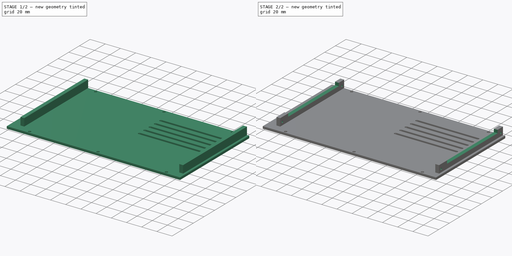
[diagram: build sequence overview — one tinted view per stage of 2, left to right]
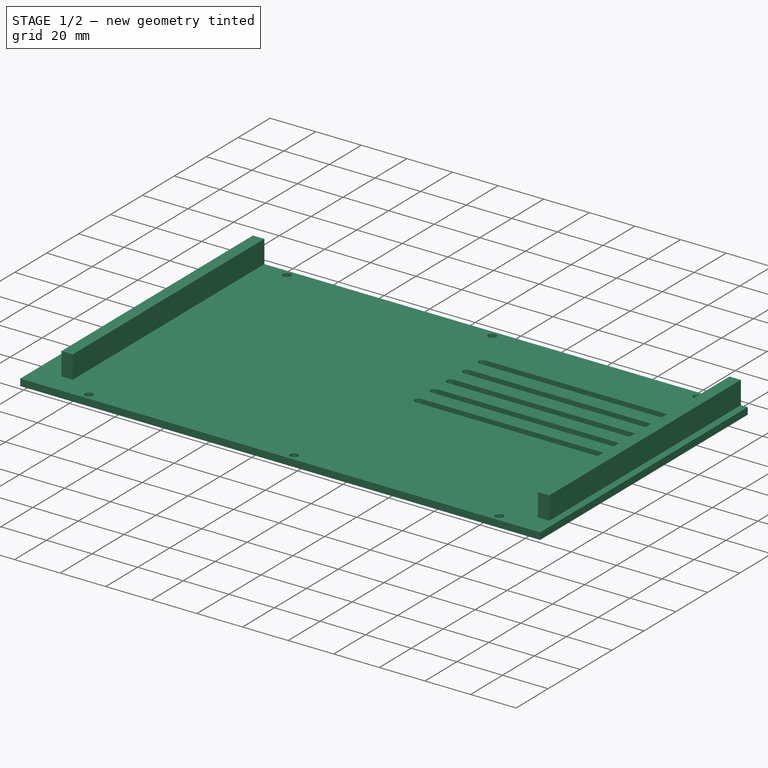
[diagram: stage 1 of 2 — iso view after this stage's code; geometry added in this stage tinted green]
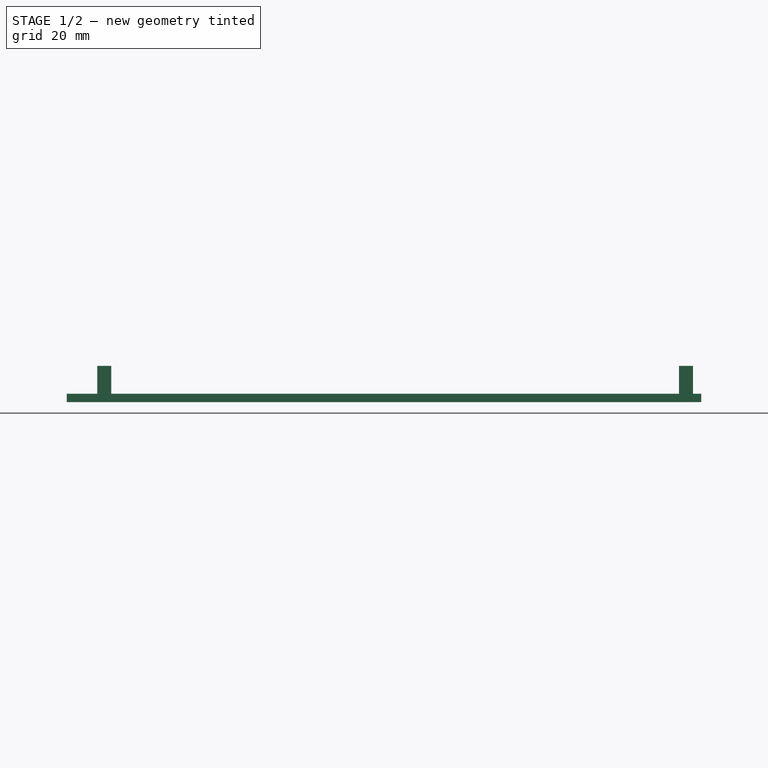
[diagram: stage 1 of 2 — front view after this stage's code; geometry added in this stage tinted green]
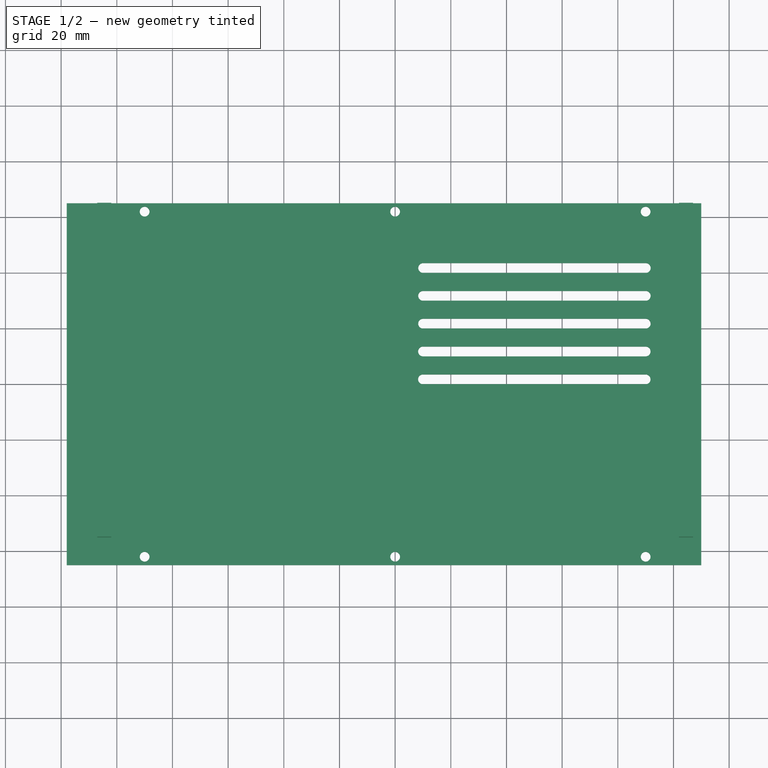
[diagram: stage 1 of 2 — top view after this stage's code; geometry added in this stage tinted green]
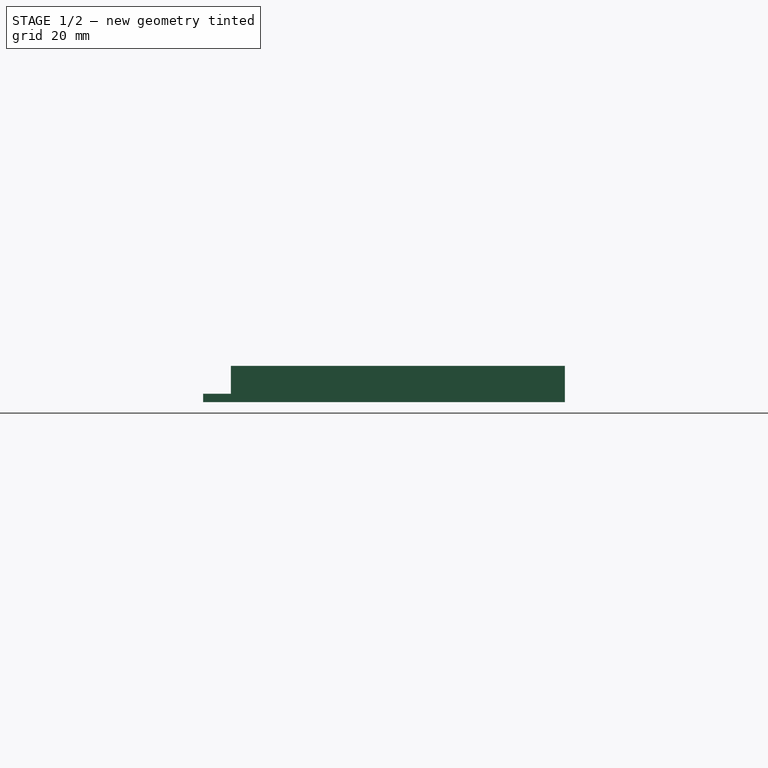
[diagram: stage 1 of 2 — right view after this stage's code; geometry added in this stage tinted green]
FCSTD DOCUMENT  (FreeCAD 0.19R24267 +99 (Git))
Label: T41 Side Left Panel V010
License: All rights reserved
LicenseURL: http://en.wikipedia.org/wiki/All_rights_reserved
objects: Sketcher::SketchObject×3, PartDesign::Pad×2, PartDesign::Pocket×1, PartDesign::Body×1
note: 10 computed .brp shape members not serialized (recipe doc carries the construction recipe); baked Part::Feature solids carry a one-line shape summary decoded from their .brp

FEATURE [Sketcher::SketchObject] Sketch
  FullyConstrained = true
  MapMode = 5
  Support = -> [XY_Plane]
  sketch-geometry (34):
    g0: LineSegment StartX=-118 StartY=65 StartZ=0 EndX=110 EndY=65 EndZ=0
    g1: LineSegment StartX=110 StartY=65 StartZ=0 EndX=110 EndY=-65 EndZ=0
    g2: LineSegment StartX=110 StartY=-65 StartZ=0 EndX=-118 EndY=-65 EndZ=0
    g3: LineSegment StartX=-118 StartY=-65 StartZ=0 EndX=-118 EndY=65 EndZ=0
    g4: Circle CenterX=-90 CenterY=62 CenterZ=0 NormalX=0 NormalY=0 NormalZ=1 AngleXU=0 Radius=1.75
    g5: Circle CenterX=0 CenterY=62 CenterZ=0 NormalX=0 NormalY=0 NormalZ=1 AngleXU=0 Radius=1.75
    g6: Circle CenterX=90 CenterY=62 CenterZ=0 NormalX=0 NormalY=0 NormalZ=1 AngleXU=0 Radius=1.75
    g7: Circle CenterX=-90 CenterY=-62 CenterZ=0 NormalX=0 NormalY=0 NormalZ=1 AngleXU=0 Radius=1.75
    g8: Circle CenterX=0 CenterY=-62 CenterZ=0 NormalX=0 NormalY=0 NormalZ=1 AngleXU=0 Radius=1.75
    g9: Circle CenterX=90 CenterY=-62 CenterZ=0 NormalX=0 NormalY=0 NormalZ=1 AngleXU=0 Radius=1.75
    g10: ArcOfCircle CenterX=10.0592 CenterY=41.75 CenterZ=0 NormalX=0 NormalY=0 NormalZ=1 AngleXU=0 Radius=1.75 StartAngle=1.5708 EndAngle=4.71239
    g11: ArcOfCircle CenterX=90.0592 CenterY=41.75 CenterZ=0 NormalX=0 NormalY=0 NormalZ=1 AngleXU=0 Radius=1.75 StartAngle=4.71239 EndAngle=7.85398
    g12: LineSegment StartX=10.0592 StartY=40 StartZ=0 EndX=90.0592 EndY=40 EndZ=0
    g13: LineSegment StartX=10.0592 StartY=43.5 StartZ=0 EndX=90.0592 EndY=43.5 EndZ=0
    g14: ArcOfCircle CenterX=10.0444 CenterY=31.75 CenterZ=0 NormalX=0 NormalY=0 NormalZ=1 AngleXU=0 Radius=1.75 StartAngle=1.5708 EndAngle=4.71239
    g15: ArcOfCircle CenterX=90.0444 CenterY=31.75 CenterZ=0 NormalX=0 NormalY=0 NormalZ=1 AngleXU=0 Radius=1.75 StartAngle=4.71239 EndAngle=7.85398
    g16: LineSegment StartX=10.0444 StartY=30 StartZ=0 EndX=90.0444 EndY=30 EndZ=0
    g17: LineSegment StartX=10.0444 StartY=33.5 StartZ=0 EndX=90.0444 EndY=33.5 EndZ=0
    g18: LineSegment StartX=10.0592 StartY=43.5 StartZ=0 EndX=10.0444 EndY=33.5 EndZ=0
    g19: ArcOfCircle CenterX=10.0296 CenterY=21.75 CenterZ=0 NormalX=0 NormalY=0 NormalZ=1 AngleXU=0 Radius=1.75 StartAngle=1.5708 EndAngle=4.71239
    g20: ArcOfCircle CenterX=90.0296 CenterY=21.75 CenterZ=0 NormalX=0 NormalY=0 NormalZ=1 AngleXU=0 Radius=1.75 StartAngle=4.71239 EndAngle=7.85398
    g21: LineSegment StartX=10.0296 StartY=20 StartZ=0 EndX=90.0296 EndY=20 EndZ=0
    g22: LineSegment StartX=10.0296 StartY=23.5 StartZ=0 EndX=90.0296 EndY=23.5 EndZ=0
    g23: LineSegment StartX=10.0444 StartY=33.5 StartZ=0 EndX=10.0296 EndY=23.5 EndZ=0
    g24: ArcOfCircle CenterX=10.0148 CenterY=11.75 CenterZ=0 NormalX=0 NormalY=0 NormalZ=1 AngleXU=0 Radius=1.75 StartAngle=1.5708 EndAngle=4.71239
    g25: ArcOfCircle CenterX=90.0148 CenterY=11.75 CenterZ=0 NormalX=0 NormalY=0 NormalZ=1 AngleXU=0 Radius=1.75 StartAngle=4.71239 EndAngle=7.85398
    g26: LineSegment StartX=10.0148 StartY=9.99999 StartZ=0 EndX=90.0148 EndY=9.99999 EndZ=0
    g27: LineSegment StartX=10.0148 StartY=13.5 StartZ=0 EndX=90.0148 EndY=13.5 EndZ=0
    g28: LineSegment StartX=10.0296 StartY=23.5 StartZ=0 EndX=10.0148 EndY=13.5 EndZ=0
    g29: ArcOfCircle CenterX=10 CenterY=1.75 CenterZ=0 NormalX=0 NormalY=0 NormalZ=1 AngleXU=0 Radius=1.75 StartAngle=1.5708 EndAngle=4.71239
    g30: ArcOfCircle CenterX=90 CenterY=1.75 CenterZ=0 NormalX=0 NormalY=0 NormalZ=1 AngleXU=0 Radius=1.75 StartAngle=4.71239 EndAngle=7.85398
    g31: LineSegment StartX=10 StartY=0 StartZ=0 EndX=90 EndY=0 EndZ=0
    g32: LineSegment StartX=10 StartY=3.5 StartZ=0 EndX=90 EndY=3.5 EndZ=0
    g33: LineSegment StartX=10.0148 StartY=13.5 StartZ=0 EndX=10 EndY=3.5 EndZ=0
  constraints (90):
    c: Coincident(g0,g1)
    c: Coincident(g1,g2)
    c: Coincident(g2,g3)
    c: Coincident(g3,g0)
    c: Horizontal(g0)
    c: Vertical(g1)
    c: DistanceX(g0,g0) = 228
    c: DistanceY(g1,g1) = 130
    c: Symmetric(g2,g1,g-2)
    c: Symmetric(g2,g0,g-1)
    c: PointOnObject(g5,g-2)
    c: Equal(g4,g5)
    c: Equal(g4,g6)
    c: Diameter(g4) = 3.5
    c: Horizontal(g4,g5)
    c: Horizontal(g5,g6)
    c: DistanceY(g-1,g5) = 62
    c: Equal(g7,g8)
    c: Equal(g7,g9)
    c: Diameter(g7) = 3.5
    c: Horizontal(g7,g8)
    c: Horizontal(g8,g9)
    c: DistanceY(g8,g-1) = 62
    c: DistanceX(g2,g7) = 28
    c: DistanceX(g9,g1) = 20
    c: PointOnObject(g8,g-2)
    c: DistanceX(g6,g0) = 20
    c: DistanceX(g0,g4) = 28
    c: DistanceX(g-1,g1) = 110
    c: DistanceX(g2,g1) = 228
    c: DistanceY(g1,g-1) = 65
    c: DistanceY(g2,g-1) = 65
    c: Tangent(g10,g13) = 1.5708
    c: Tangent(g10,g12) = -1.5708
    c: Tangent(g12,g11) = -1.5708
    c: Tangent(g13,g11) = 1.5708
    c: Horizontal(g12)
    c: Equal(g10,g11)
    c: DistanceX(g10,g11) = 80
    c: DistanceY(g10,g10) = 3.5
    c: Tangent(g14,g17) = 1.5708
    c: Tangent(g14,g16) = -1.5708
    c: Tangent(g16,g15) = -1.5708
    c: Tangent(g17,g15) = 1.5708
    c: Horizontal(g16)
    c: Equal(g14,g15)
    c: DistanceX(g14,g15) = 80
    c: DistanceY(g14,g14) = 3.5
    c: Coincident(g10,g18)
    c: Coincident(g14,g18)
    c: Distance(g18) = 10
    c: Angle(g18) = -1.57228
    c: Tangent(g19,g22) = 1.5708
    c: Tangent(g19,g21) = -1.5708
    c: Tangent(g21,g20) = -1.5708
    c: Tangent(g22,g20) = 1.5708
    c: Horizontal(g21)
    c: Equal(g19,g20)
    c: DistanceX(g19,g20) = 80
    c: DistanceY(g19,g19) = 3.5
    c: Coincident(g14,g23)
    c: Coincident(g19,g23)
    c: Equal(g18,g23)
    c: Parallel(g23,g18)
    c: Tangent(g24,g27) = 1.5708
    c: Tangent(g24,g26) = -1.5708
    c: Tangent(g26,g25) = -1.5708
    c: Tangent(g27,g25) = 1.5708
    c: Horizontal(g26)
    c: Equal(g24,g25)
    c: DistanceX(g24,g25) = 80
    c: DistanceY(g24,g24) = 3.5
    c: Coincident(g19,g28)
    c: Coincident(g24,g28)
    c: Equal(g18,g28)
    c: Parallel(g28,g18)
    c: Tangent(g29,g32) = 1.5708
    c: Tangent(g29,g31) = -1.5708
    c: Tangent(g31,g30) = -1.5708
    c: Tangent(g32,g30) = 1.5708
    c: Horizontal(g31)
    c: Equal(g29,g30)
    c: DistanceX(g29,g30) = 80
    c: DistanceY(g29,g29) = 3.5
    c: Coincident(g24,g33)
    c: Coincident(g29,g33)
    c: Equal(g18,g33)
    c: Parallel(g33,g18)
    c: PointOnObject(g29,g-1)
    c: DistanceX(g-1,g29) = 10
FEATURE [PartDesign::Pad] Pad
  Direction = (1,1,1)
  Length = 3
  Length2 = 100
  Profile = -> Sketch
  Type = 0
FEATURE [Sketcher::SketchObject] Sketch001
  AttachmentOffset = pos=(0,0,3) rot=(0,0,1;0rad)
  FullyConstrained = true
  MapMode = 5
  Placement = pos=(0,0,3) rot=(0,0,1;0rad)
  Support = -> [XY_Plane]
  sketch-geometry (8):
    g0: LineSegment StartX=102 StartY=65 StartZ=0 EndX=107 EndY=65 EndZ=0
    g1: LineSegment StartX=107 StartY=65 StartZ=0 EndX=107 EndY=-55 EndZ=0
    g2: LineSegment StartX=107 StartY=-55 StartZ=0 EndX=102 EndY=-55 EndZ=0
    g3: LineSegment StartX=102 StartY=-55 StartZ=0 EndX=102 EndY=65 EndZ=0
    g4: LineSegment StartX=-107 StartY=65 StartZ=0 EndX=-102 EndY=65 EndZ=0
    g5: LineSegment StartX=-102 StartY=65 StartZ=0 EndX=-102 EndY=-55 EndZ=0
    g6: LineSegment StartX=-102 StartY=-55 StartZ=0 EndX=-107 EndY=-55 EndZ=0
    g7: LineSegment StartX=-107 StartY=-55 StartZ=0 EndX=-107 EndY=65 EndZ=0
  constraints (24):
    c: Coincident(g0,g1)
    c: Coincident(g1,g2)
    c: Coincident(g2,g3)
    c: Coincident(g3,g0)
    c: Horizontal(g0)
    c: Horizontal(g2)
    c: Vertical(g1)
    c: Vertical(g3)
    c: Coincident(g4,g5)
    c: Coincident(g5,g6)
    c: Coincident(g6,g7)
    c: Coincident(g7,g4)
    c: Horizontal(g4)
    c: Horizontal(g6)
    c: Vertical(g5)
    c: Vertical(g7)
    c: DistanceX(g0,g0) = 5
    c: DistanceX(g4,g4) = 5
    c: DistanceY(g5,g5) = 120
    c: DistanceY(g3,g3) = 120
    c: DistanceY(g-1,g4) = 65
    c: DistanceY(g-1,g0) = 65
    c: DistanceX(g-1,g1) = 107
    c: DistanceX(g6,g-1) = 107
FEATURE [PartDesign::Pad] Pad001
  BaseFeature = -> Pad
  Direction = (1,1,1)
  Length = 10
  Length2 = 100
  Profile = -> Sketch001
  Type = 0
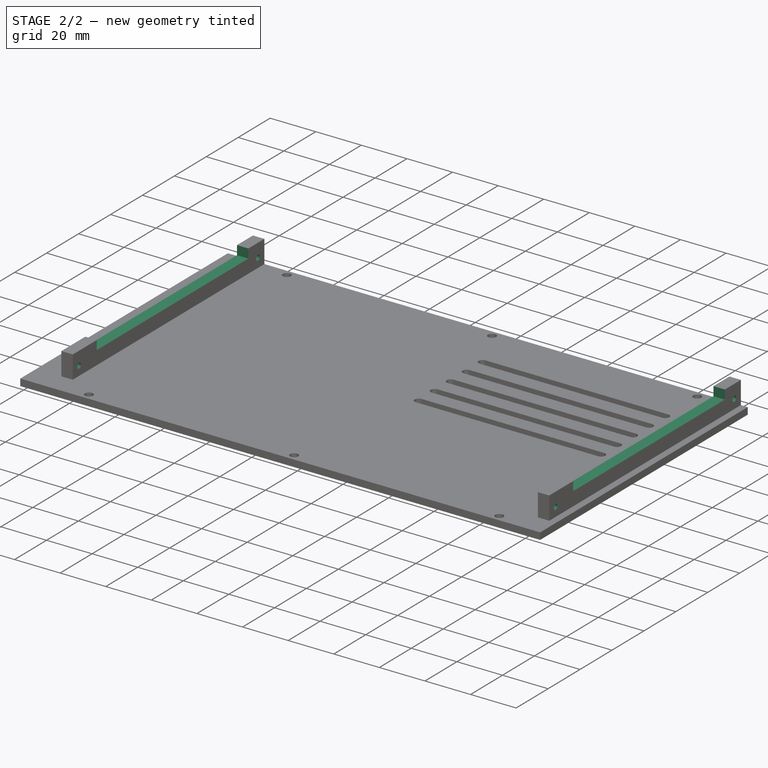
[diagram: stage 2 of 2 — iso view after this stage's code; geometry added in this stage tinted green]
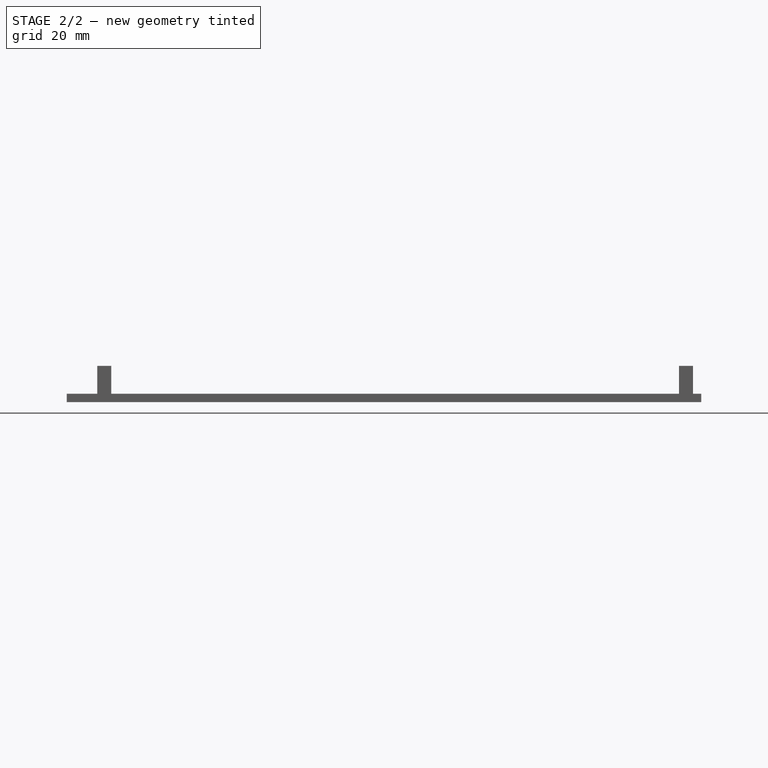
[diagram: stage 2 of 2 — front view after this stage's code; geometry added in this stage tinted green]
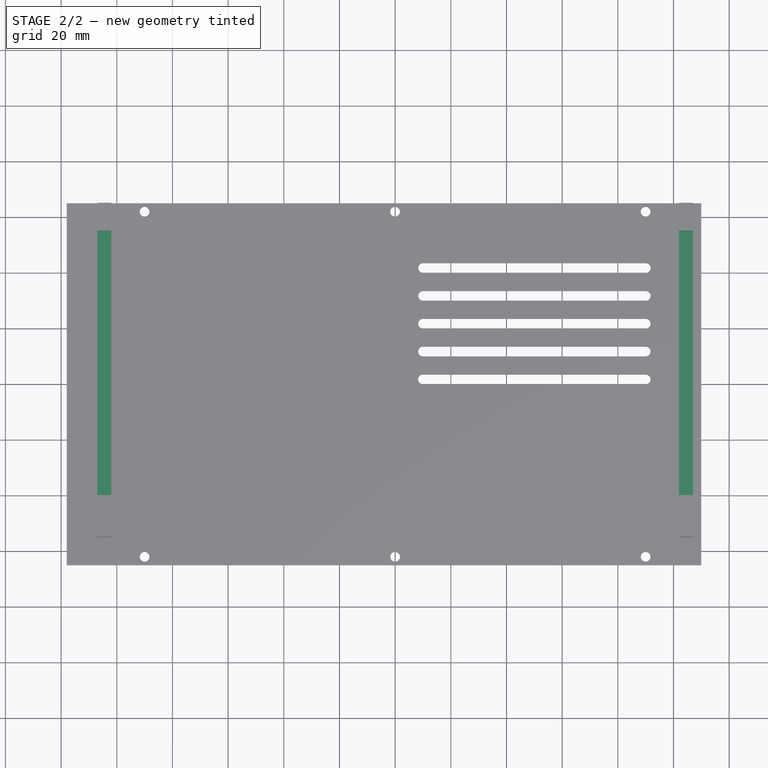
[diagram: stage 2 of 2 — top view after this stage's code; geometry added in this stage tinted green]
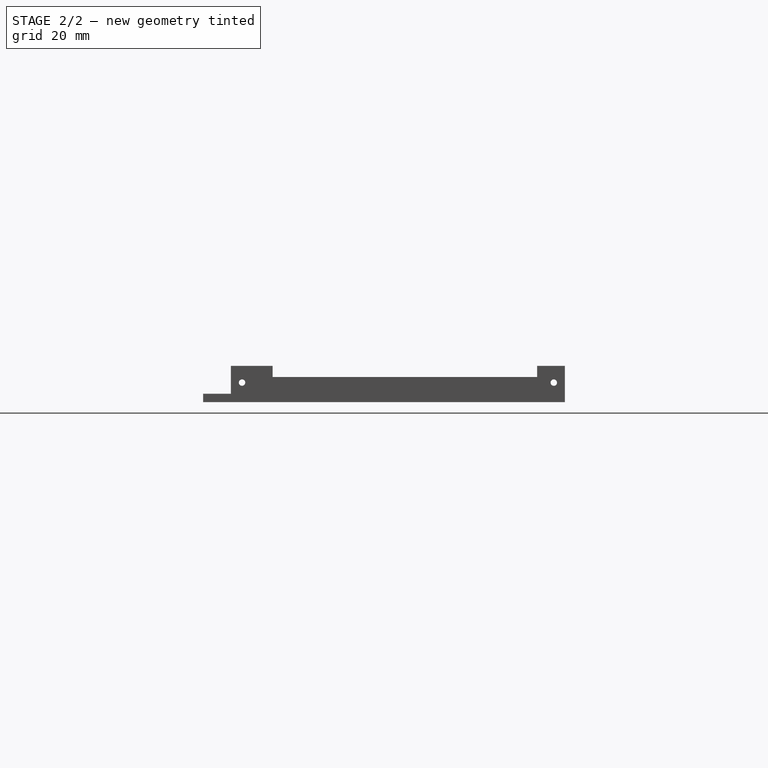
[diagram: stage 2 of 2 — right view after this stage's code; geometry added in this stage tinted green]
FEATURE [Sketcher::SketchObject] Sketch002
  AttachmentOffset = pos=(0,0,107) rot=(0,0,1;0rad)
  FullyConstrained = true
  MapMode = 5
  Placement = pos=(107,-2.38e-14,2.38e-14) rot=(0.57735,0.57735,0.57735;2.0944rad)
  Support = -> [YZ_Plane]
  sketch-geometry (6):
    g0: Circle CenterX=-51 CenterY=7 CenterZ=0 NormalX=0 NormalY=0 NormalZ=1 AngleXU=0 Radius=1.15
    g1: Circle CenterX=61 CenterY=7 CenterZ=0 NormalX=0 NormalY=0 NormalZ=1 AngleXU=0 Radius=1.15
    g2: LineSegment StartX=-40 StartY=13 StartZ=0 EndX=55 EndY=13 EndZ=0
    g3: LineSegment StartX=55 StartY=13 StartZ=0 EndX=55 EndY=9 EndZ=0
    g4: LineSegment StartX=55 StartY=9 StartZ=0 EndX=-40 EndY=9 EndZ=0
    g5: LineSegment StartX=-40 StartY=9 StartZ=0 EndX=-40 EndY=13 EndZ=0
  constraints (18):
    c: Equal(g0,g1)
    c: DistanceY(g-1,g0) = 7
    c: Horizontal(g0,g1)
    c: DistanceX(g1) = 61
    c: DistanceX(g0,g-1) = 51
    c: Coincident(g2,g3)
    c: Coincident(g3,g4)
    c: Coincident(g4,g5)
    c: Coincident(g5,g2)
    c: Horizontal(g2)
    c: Horizontal(g4)
    c: Vertical(g3)
    c: Vertical(g5)
    c: DistanceX(g4,g-1) = 40
    c: DistanceX(g4,g4) = 95
    c: DistanceY(g-1,g2) = 13
    c: DistanceY(g5,g5) = 4
    c: Diameter(g0) = 2.3
FEATURE [PartDesign::Pocket] Pocket
  BaseFeature = -> Pad001
  Length = 225
  Length2 = 100
  Profile = -> Sketch002
  Type = 0
FEATURE [PartDesign::Body] Body
  Group = -> [Sketch,Pad,Sketch001,Pad001,Sketch002,Pocket]
  Origin = -> Origin
  Tip = -> Pocket
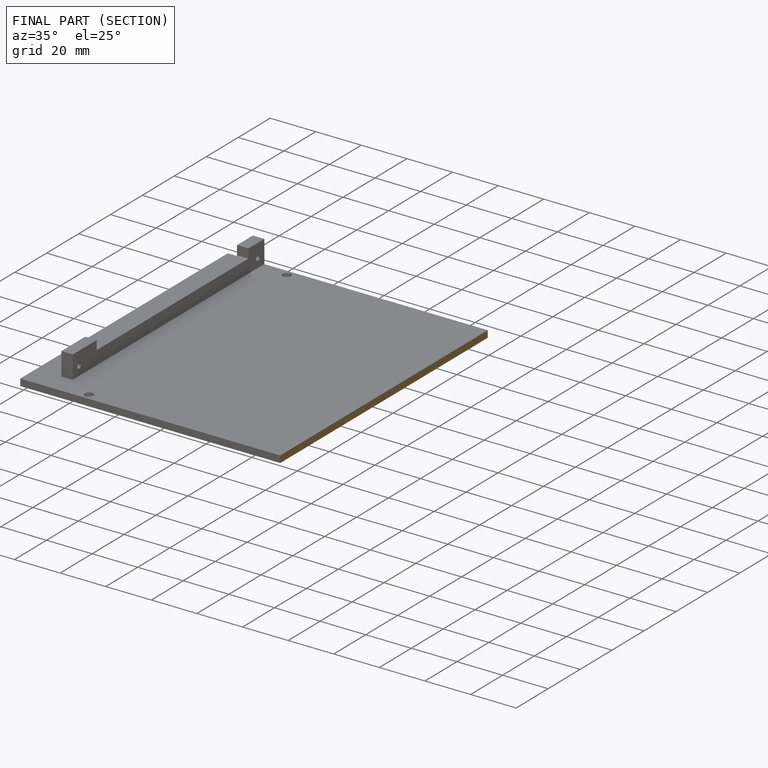
[diagram: finished part — half-section view (interior)]
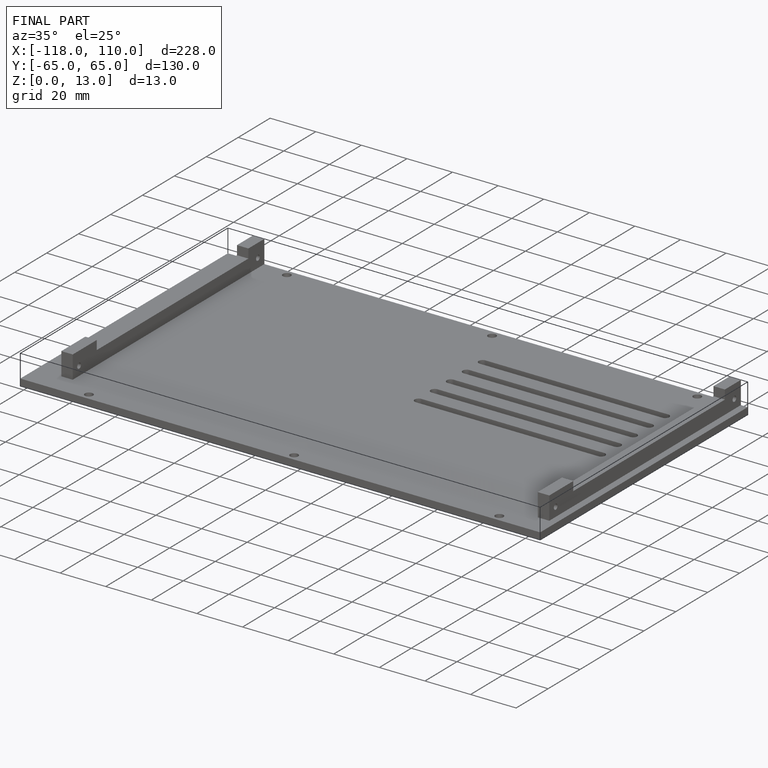
[diagram: finished part — iso view with bounding-box wireframe]
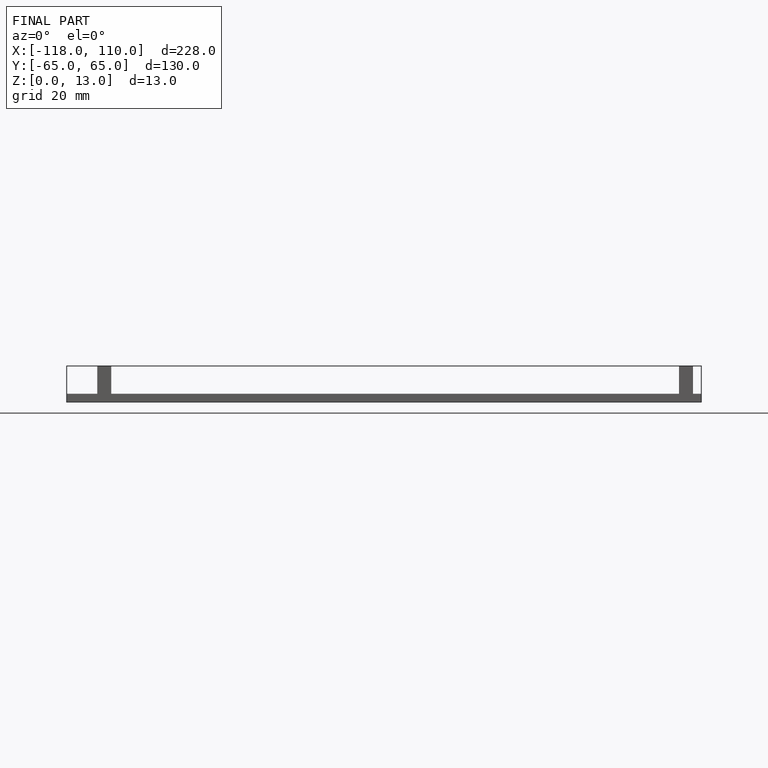
[diagram: finished part — front view with bounding-box wireframe]
